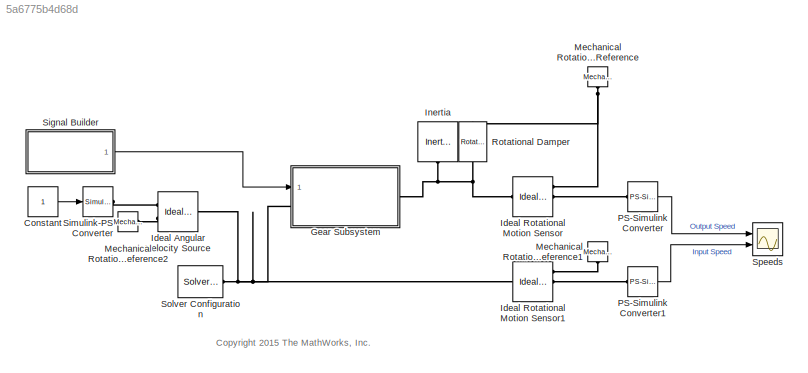
MODEL slx_5a6775b4d68d
KIND model
CONFIG AbsTol = 1e-3
CONFIG FixedStep = auto
CONFIG MaxStep = 0.2
CONFIG MinStep = auto
CONFIG RelTol = 1e-3
CONFIG SampleTimeConstraint = Unconstrained
CONFIG Solver = ode23t
CONFIG SolverMode = Auto
CONFIG SolverName = ode23t
CONFIG StartTime = 0.0
CONFIG StopTime = 30
BLOCK [Constant] Constant
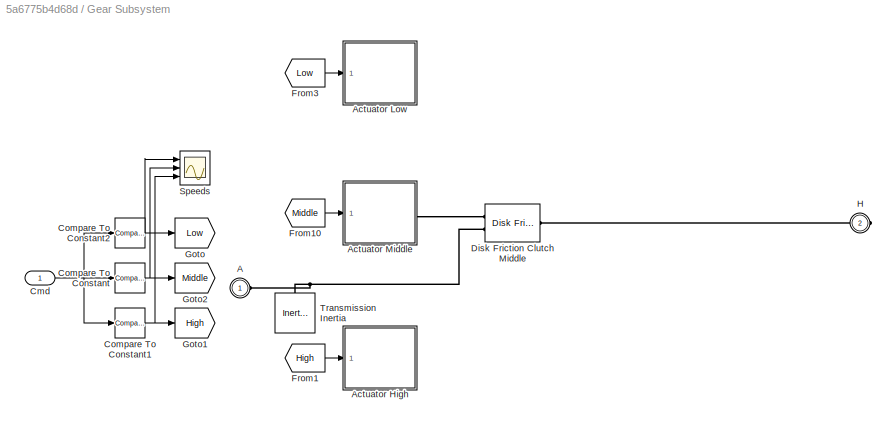
BLOCK [SubSystem] Gear Subsystem
  Ports = [1, 0, 0, 0, 0, 1, 1]
  RequestExecContextInheritance = off
BLOCK [PMIOPort] Gear Subsystem/A
  Port = 1
  Side = Left
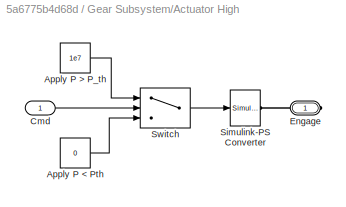
BLOCK [SubSystem] Gear Subsystem/Actuator High
  Ports = [1, 0, 0, 0, 0, 0, 1]
  RequestExecContextInheritance = off
BLOCK [Constant] Gear Subsystem/Actuator High/Apply P < Pth
  Value = 0
BLOCK [Constant] Gear Subsystem/Actuator High/Apply P > P_th
  Value = 1e7
BLOCK [Inport] Gear Subsystem/Actuator High/Cmd
  IconDisplay = Port number
BLOCK [PMIOPort] Gear Subsystem/Actuator High/Engage
  Port = 1
  Side = Right
BLOCK [Reference] Gear Subsystem/Actuator High/Simulink-PS Converter  REF=nesl_utility/Simulink-PS
Converter
  AffineConversion = off
  Frequencies = []
  InputFilterTimeConstant = 0.001
  InputFiltering = off
  LeftPortType = input
  NoiseDistribution = none
  NoiseParameters = []
  PhysicalDomain = network_engine_domain
  Ports = [1, 0, 0, 0, 0, 0, 1]
  PseudoPeriodic = off
  RightPortType = output
  SimscapeFilterOrder = 1
  SourceBlock = nesl_utility/Simulink-PS\nConverter
  SourceType = Simulink-PS\nConverter
  SubClassName = ps_input
  UdotUserProvided = 1
  Unit = 1
BLOCK [Switch] Gear Subsystem/Actuator High/Switch
  Criteria = u2 > Threshold
  InputSameDT = off
  SaturateOnIntegerOverflow = off
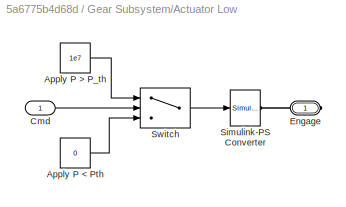
BLOCK [SubSystem] Gear Subsystem/Actuator Low
  Ports = [1, 0, 0, 0, 0, 0, 1]
  RequestExecContextInheritance = off
BLOCK [Constant] Gear Subsystem/Actuator Low/Apply P < Pth
  Value = 0
BLOCK [Constant] Gear Subsystem/Actuator Low/Apply P > P_th
  Value = 1e7
BLOCK [Inport] Gear Subsystem/Actuator Low/Cmd
  IconDisplay = Port number
BLOCK [PMIOPort] Gear Subsystem/Actuator Low/Engage
  Port = 1
  Side = Right
BLOCK [Reference] Gear Subsystem/Actuator Low/Simulink-PS Converter  REF=nesl_utility/Simulink-PS
Converter
  AffineConversion = off
  Frequencies = []
  InputFilterTimeConstant = 0.001
  InputFiltering = off
  LeftPortType = input
  NoiseDistribution = none
  NoiseParameters = []
  PhysicalDomain = network_engine_domain
  Ports = [1, 0, 0, 0, 0, 0, 1]
  PseudoPeriodic = off
  RightPortType = output
  SimscapeFilterOrder = 1
  SourceBlock = nesl_utility/Simulink-PS\nConverter
  SourceType = Simulink-PS\nConverter
  SubClassName = ps_input
  UdotUserProvided = 1
  Unit = 1
BLOCK [Switch] Gear Subsystem/Actuator Low/Switch
  Criteria = u2 > Threshold
  InputSameDT = off
  SaturateOnIntegerOverflow = off
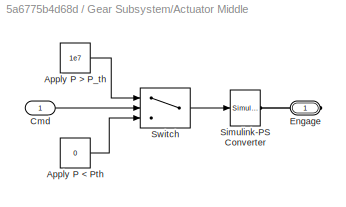
BLOCK [SubSystem] Gear Subsystem/Actuator Middle
  Ports = [1, 0, 0, 0, 0, 0, 1]
  RequestExecContextInheritance = off
BLOCK [Constant] Gear Subsystem/Actuator Middle/Apply P < Pth
  Value = 0
BLOCK [Constant] Gear Subsystem/Actuator Middle/Apply P > P_th
  Value = 1e7
BLOCK [Inport] Gear Subsystem/Actuator Middle/Cmd
  IconDisplay = Port number
BLOCK [PMIOPort] Gear Subsystem/Actuator Middle/Engage
  Port = 1
  Side = Right
BLOCK [Reference] Gear Subsystem/Actuator Middle/Simulink-PS Converter  REF=nesl_utility/Simulink-PS
Converter
  AffineConversion = off
  Frequencies = []
  InputFilterTimeConstant = 0.001
  InputFiltering = off
  LeftPortType = input
  NoiseDistribution = none
  NoiseParameters = []
  PhysicalDomain = network_engine_domain
  Ports = [1, 0, 0, 0, 0, 0, 1]
  PseudoPeriodic = off
  RightPortType = output
  SimscapeFilterOrder = 1
  SourceBlock = nesl_utility/Simulink-PS\nConverter
  SourceType = Simulink-PS\nConverter
  SubClassName = ps_input
  UdotUserProvided = 1
  Unit = 1
BLOCK [Switch] Gear Subsystem/Actuator Middle/Switch
  Criteria = u2 > Threshold
  InputSameDT = off
  SaturateOnIntegerOverflow = off
BLOCK [Inport] Gear Subsystem/Cmd
  IconDisplay = Port number
BLOCK [Reference] Gear Subsystem/Compare To Constant  REF=simulink/Logic and Bit
Operations/Compare
To Constant
  OutDataTypeStr = boolean
  Ports = [1, 1]
  SourceBlock = simulink/Logic and Bit\nOperations/Compare\nTo Constant
  SourceType = Compare To Constant
  ZeroCross = on
  const = 2
  relop = ==
BLOCK [Reference] Gear Subsystem/Compare To Constant1  REF=simulink/Logic and Bit
Operations/Compare
To Constant
  OutDataTypeStr = boolean
  Ports = [1, 1]
  SourceBlock = simulink/Logic and Bit\nOperations/Compare\nTo Constant
  SourceType = Compare To Constant
  ZeroCross = on
  const = 3
  relop = ==
BLOCK [Reference] Gear Subsystem/Compare To Constant2  REF=simulink/Logic and Bit
Operations/Compare
To Constant
  OutDataTypeStr = boolean
  Ports = [1, 1]
  SourceBlock = simulink/Logic and Bit\nOperations/Compare\nTo Constant
  SourceType = Compare To Constant
  ZeroCross = on
  const = 1
  relop = ==
BLOCK [Reference] Gear Subsystem/Disk Friction Clutch Middle  REF=sdl_lib/Clutches/Disk Friction Clutch
  ClassName = disk_friction_clutch
  ComponentPath = sdl.clutches.disk_friction_clutch
  ComponentVariantNames = disk_friction_clutch
  ComponentVariants = sdl.clutches.disk_friction_clutch
  LogSimulationData = off
  Ports = [0, 0, 0, 0, 0, 2, 1]
  SchemaVersion = 1
  SourceBlock = sdl_lib/Clutches/Disk Friction Clutch
  SourceFile = sdl.clutches.disk_friction_clutch
  SourceType = Disk Friction Clutch
  d_f = 1
  d_f_unit = 1
  d_i = 100
  d_i_unit = mm
  d_o = 150
  d_o_unit = mm
  friction_model = 1
  friction_model_unit = 1
  geometry_model = 1
  geometry_model_unit = 1
  initial_state_locked = 0
  initial_state_locked_unit = 1
  mu_coulomb = 0.3
  mu_coulomb_unit = 1
  mu_coulomb_vector = [ 0.29 0.28 0.26 0.22 0.21 0.2 0.2 0.19 0.19 0.19 0.19 0.19 ]
  mu_coulomb_vector_unit = 1
  mu_extrap_method = 1
  mu_extrap_method_unit = 1
  mu_interp_method = 1
  mu_interp_method_unit = 1
  mu_static = 0.35
  mu_static_unit = 1
  mu_visc = 0
  mu_visc_unit = N*m/(rad/s)
  mu_w_vector = [ 0 0.1 0.2 0.3 0.4 0.5 1 2 5 10 100 1000 ]
  mu_w_vector_unit = rad/s
  nS = 4
  nS_unit = 1
  piston_area = 0.001
  piston_area_unit = m^2
  pressure_min = 100
  pressure_min_unit = Pa
  r_eff = 130
  r_eff_unit = mm
  unidirectional = 0
  unidirectional_unit = 1
  w_tol = 0.001
  w_tol_unit = rad/s
BLOCK [From] Gear Subsystem/From1
  GotoTag = High
BLOCK [From] Gear Subsystem/From10
  GotoTag = Middle
BLOCK [From] Gear Subsystem/From3
  GotoTag = Low
BLOCK [Goto] Gear Subsystem/Goto
  GotoTag = Low
BLOCK [Goto] Gear Subsystem/Goto1
  GotoTag = High
BLOCK [Goto] Gear Subsystem/Goto2
  GotoTag = Middle
BLOCK [PMIOPort] Gear Subsystem/H
  Port = 2
  Side = Right
BLOCK [Scope] Gear Subsystem/Speeds
  DataFormat = StructureWithTime
  Floating = off
  LimitDataPoints = off
  NumInputPorts = 3
  Ports = [3]
  SampleTime = 0
  SaveName = ScopeData1
  YMax = 1.7~2~5
  YMin = -0.2~0~-5
  ZoomMode = xonly
BLOCK [Reference] Gear Subsystem/Transmission Inertia  REF=fl_lib/Mechanical/Rotational Elements/Inertia
  ClassName = inertia
  ComponentPath = foundation.mechanical.rotational.inertia
  ComponentVariantNames = inertia
  ComponentVariants = foundation.mechanical.rotational.inertia
  LogSimulationData = off
  Ports = [0, 0, 0, 0, 0, 1]
  SchemaVersion = 1
  SourceBlock = fl_lib/Mechanical/Rotational Elements/Inertia
  SourceFile = foundation.mechanical.rotational.inertia
  SourceType = Inertia
  inertia = 0.0005
  inertia_unit = kg*m^2
  t = 0
  t_priority = High
  t_specify = off
  t_unit = N*m
  w = 0
  w_priority = High
  w_specify = off
  w_unit = rad/s
BLOCK [Reference] Ideal Angular Velocity Source  REF=fl_lib/Mechanical/Mechanical Sources/Ideal Angular
Velocity Source
  ClassName = angular_velocity
  ComponentPath = foundation.mechanical.sources.angular_velocity
  ComponentVariantNames = angular_velocity
  ComponentVariants = foundation.mechanical.sources.angular_velocity
  LogSimulationData = off
  Ports = [0, 0, 0, 0, 0, 1, 2]
  SchemaVersion = 1
  SourceBlock = fl_lib/Mechanical/Mechanical Sources/Ideal Angular\nVelocity Source
  SourceFile = foundation.mechanical.sources.angular_velocity
  SourceType = Ideal Angular\nVelocity Source
BLOCK [Reference] Ideal Rotational Motion Sensor  REF=fl_lib/Mechanical/Mechanical Sensors/Ideal Rotational
Motion Sensor
  ClassName = angular_velocity
  ComponentPath = foundation.mechanical.sensors.angular_velocity
  ComponentVariantNames = angular_velocity
  ComponentVariants = foundation.mechanical.sensors.angular_velocity
  LogSimulationData = off
  Ports = [0, 0, 0, 0, 0, 1, 3]
  SchemaVersion = 1
  SourceBlock = fl_lib/Mechanical/Mechanical Sensors/Ideal Rotational\nMotion Sensor
  SourceFile = foundation.mechanical.sensors.angular_velocity
  SourceType = Ideal Rotational\nMotion Sensor
  offset = 0
  offset_unit = rad
BLOCK [Reference] Ideal Rotational Motion Sensor1  REF=fl_lib/Mechanical/Mechanical Sensors/Ideal Rotational
Motion Sensor
  ClassName = angular_velocity
  ComponentPath = foundation.mechanical.sensors.angular_velocity
  ComponentVariantNames = angular_velocity
  ComponentVariants = foundation.mechanical.sensors.angular_velocity
  LogSimulationData = off
  Ports = [0, 0, 0, 0, 0, 1, 3]
  SchemaVersion = 1
  SourceBlock = fl_lib/Mechanical/Mechanical Sensors/Ideal Rotational\nMotion Sensor
  SourceFile = foundation.mechanical.sensors.angular_velocity
  SourceType = Ideal Rotational\nMotion Sensor
  offset = 0
  offset_unit = rad
BLOCK [Reference] Inertia  REF=fl_lib/Mechanical/Rotational Elements/Inertia
  ClassName = inertia
  ComponentPath = foundation.mechanical.rotational.inertia
  ComponentVariantNames = inertia
  ComponentVariants = foundation.mechanical.rotational.inertia
  LogSimulationData = off
  Ports = [0, 0, 0, 0, 0, 1]
  SchemaVersion = 1
  SourceBlock = fl_lib/Mechanical/Rotational Elements/Inertia
  SourceFile = foundation.mechanical.rotational.inertia
  SourceType = Inertia
  inertia = 0.0001
  inertia_unit = kg*m^2
  t = 0
  t_priority = High
  t_specify = off
  t_unit = N*m
  w = 0
  w_priority = High
  w_specify = on
  w_unit = rad/s
BLOCK [Reference] Mechanical Rotational Reference  REF=fl_lib/Mechanical/Rotational Elements/Mechanical
Rotational Reference
  ClassName = reference
  ComponentPath = foundation.mechanical.rotational.reference
  ComponentVariantNames = reference
  ComponentVariants = foundation.mechanical.rotational.reference
  LogSimulationData = off
  Ports = [0, 0, 0, 0, 0, 1]
  SchemaVersion = 1
  SourceBlock = fl_lib/Mechanical/Rotational Elements/Mechanical\nRotational Reference
  SourceFile = foundation.mechanical.rotational.reference
  SourceType = Mechanical\nRotational Reference
BLOCK [Reference] Mechanical Rotational Reference1  REF=fl_lib/Mechanical/Rotational Elements/Mechanical
Rotational Reference
  ClassName = reference
  ComponentPath = foundation.mechanical.rotational.reference
  ComponentVariantNames = reference
  ComponentVariants = foundation.mechanical.rotational.reference
  LogSimulationData = off
  Ports = [0, 0, 0, 0, 0, 1]
  SchemaVersion = 1
  SourceBlock = fl_lib/Mechanical/Rotational Elements/Mechanical\nRotational Reference
  SourceFile = foundation.mechanical.rotational.reference
  SourceType = Mechanical\nRotational Reference
BLOCK [Reference] Mechanical Rotational Reference2  REF=fl_lib/Mechanical/Rotational Elements/Mechanical
Rotational Reference
  ClassName = reference
  ComponentPath = foundation.mechanical.rotational.reference
  ComponentVariantNames = reference
  ComponentVariants = foundation.mechanical.rotational.reference
  LogSimulationData = off
  Ports = [0, 0, 0, 0, 0, 1]
  SchemaVersion = 1
  SourceBlock = fl_lib/Mechanical/Rotational Elements/Mechanical\nRotational Reference
  SourceFile = foundation.mechanical.rotational.reference
  SourceType = Mechanical\nRotational Reference
BLOCK [Reference] PS-Simulink Converter  REF=nesl_utility/PS-Simulink
Converter
  AffineConversion = off
  Frequencies = []
  LeftPortType = input
  PhysicalDomain = network_engine_domain
  Ports = [0, 1, 0, 0, 0, 1]
  PseudoPeriodic = off
  RightPortType = output
  SourceBlock = nesl_utility/PS-Simulink\nConverter
  SourceType = PS-Simulink\nConverter
  SubClassName = ps_output
  Unit = rpm
BLOCK [Reference] PS-Simulink Converter1  REF=nesl_utility/PS-Simulink
Converter
  AffineConversion = off
  Frequencies = []
  LeftPortType = input
  PhysicalDomain = network_engine_domain
  Ports = [0, 1, 0, 0, 0, 1]
  PseudoPeriodic = off
  RightPortType = output
  SourceBlock = nesl_utility/PS-Simulink\nConverter
  SourceType = PS-Simulink\nConverter
  SubClassName = ps_output
  Unit = rpm
BLOCK [Reference] Rotational Damper  REF=fl_lib/Mechanical/Rotational Elements/Rotational Damper
  ClassName = damper
  ComponentPath = foundation.mechanical.rotational.damper
  ComponentVariantNames = damper
  ComponentVariants = foundation.mechanical.rotational.damper
  D = 0.0001
  D_unit = N*m/(rad/s)
  LogSimulationData = off
  Ports = [0, 0, 0, 0, 0, 1, 1]
  SchemaVersion = 1
  SourceBlock = fl_lib/Mechanical/Rotational Elements/Rotational Damper
  SourceFile = foundation.mechanical.rotational.damper
  SourceType = Rotational Damper
  t = 0
  t_priority = High
  t_specify = off
  t_unit = N*m
  w = 0
  w_priority = High
  w_specify = off
  w_unit = rad/s
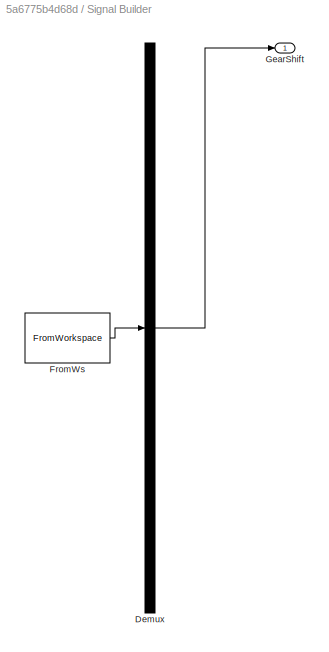
BLOCK [SubSystem] Signal Builder
  ClipboardFcn = sigbuilder_block('clipboard');
  CloseFcn = sigbuilder_block('close');
  ContinueFcn = sigbuilder_block('continue');
  CopyFcn = sigbuilder_block('copy');
  DeleteFcn = sigbuilder_block('delete');
  LoadFcn = sigbuilder_block('load');
  MaskHideContents = on
  ModelCloseFcn = sigbuilder_block('modelClose');
  NameChangeFcn = sigbuilder_block('namechange');
  OpenFcn = sigbuilder_block('open',[306 225.75 549.75 399.75 ]);
  PauseFcn = sigbuilder_block('pause');
  Ports = [0, 1]
  PreSaveFcn = sigbuilder_block('preSave');
  RequestExecContextInheritance = off
  StartFcn = sigbuilder_block('start');
  StopFcn = sigbuilder_block('stop');
  Tag = STV Subsys
BLOCK [Demux] Signal Builder/Demux
  Outputs = 1
  Ports = [1, 1]
  Tag = STV Demux
BLOCK [FromWorkspace] Signal Builder/FromWs
  SampleTime = 0
  Tag = STV FromWs
  VariableName = tuvar
  ZeroCross = on
BLOCK [Outport] Signal Builder/GearShift
  IconDisplay = Port number
  Tag = STV Outport
BLOCK [Reference] Simulink-PS Converter  REF=nesl_utility/Simulink-PS
Converter
  AffineConversion = off
  Frequencies = []
  InputFilterTimeConstant = 0.001
  InputFiltering = off
  LeftPortType = input
  NoiseDistribution = none
  NoiseParameters = []
  PhysicalDomain = network_engine_domain
  Ports = [1, 0, 0, 0, 0, 0, 1]
  PseudoPeriodic = off
  RightPortType = output
  SimscapeFilterOrder = 1
  SourceBlock = nesl_utility/Simulink-PS\nConverter
  SourceType = Simulink-PS\nConverter
  SubClassName = ps_input
  UdotUserProvided = 1
  Unit = rpm
BLOCK [Reference] Solver Configuration  REF=nesl_utility/Solver
Configuration
  AbsTol = 1e-06
  Accelerate = off
  AutomaticFiltering = on
  DelaysMemoryBudget = 1024
  DoDC = off
  DoFixedCost = off
  EnableSwitchedLinearOptims = on
  FilteringTimeConstant = 0.001
  FrequencyDomain = off
  Harmonics = []
  LeftPortType = input
  LinearAlgebra = Sparse
  LocalSolverChoice = NE_BACKWARD_EULER_ADVANCER
  LocalSolverSampleTime = 0.001
  MaxModeIter = 2
  MaxNonlinIter = 3
  MinStep = 1e-09
  NumHomotopyIterations = 100
  PhysicalDomain = network_engine_domain
  Ports = [0, 0, 0, 0, 0, 0, 1]
  Profile = off
  RelTol = 0.001
  ResidualTolerance = 1e-09
  RevertToSquareIcSolve = off
  RightPortType = generic
  SimulateNoise = off
  SourceBlock = nesl_utility/Solver\nConfiguration
  SourceType = Solver\nConfiguration
  SubClassName = solver
  ToWorkspace = off
  Tones = []
  UseCCode = off
  UseLocalSampling = off
  UseLocalSolver = off
BLOCK [Scope] Speeds
  DataFormat = StructureWithTime
  Floating = off
  LimitDataPoints = off
  NumInputPorts = 2
  Ports = [2]
  SampleTime = 0
  YMax = 1.7~1.2
  YMin = -0.2~-0.2
  ZoomMode = yonly
ANNOTATION (root): <copyright redacted>
LINE Constant:1 -> Simulink-PS Converter:1
LINE Gear Subsystem/Actuator High/Apply P < Pth:1 -> Gear Subsystem/Actuator High/Switch:3
LINE Gear Subsystem/Actuator High/Apply P > P_th:1 -> Gear Subsystem/Actuator High/Switch:1
LINE Gear Subsystem/Actuator High/Cmd:1 -> Gear Subsystem/Actuator High/Switch:2
LINE Gear Subsystem/Actuator High/Switch:1 -> Gear Subsystem/Actuator High/Simulink-PS Converter:1
LINE Gear Subsystem/Actuator Low/Apply P < Pth:1 -> Gear Subsystem/Actuator Low/Switch:3
LINE Gear Subsystem/Actuator Low/Apply P > P_th:1 -> Gear Subsystem/Actuator Low/Switch:1
LINE Gear Subsystem/Actuator Low/Cmd:1 -> Gear Subsystem/Actuator Low/Switch:2
LINE Gear Subsystem/Actuator Low/Switch:1 -> Gear Subsystem/Actuator Low/Simulink-PS Converter:1
LINE Gear Subsystem/Actuator Middle/Apply P < Pth:1 -> Gear Subsystem/Actuator Middle/Switch:3
LINE Gear Subsystem/Actuator Middle/Apply P > P_th:1 -> Gear Subsystem/Actuator Middle/Switch:1
LINE Gear Subsystem/Actuator Middle/Cmd:1 -> Gear Subsystem/Actuator Middle/Switch:2
LINE Gear Subsystem/Actuator Middle/Switch:1 -> Gear Subsystem/Actuator Middle/Simulink-PS Converter:1
NET Gear Subsystem/Cmd:1 -> Gear Subsystem/Compare To Constant1:1, Gear Subsystem/Compare To Constant2:1, Gear Subsystem/Compare To Constant:1
NET Gear Subsystem/Compare To Constant1:1 -> Gear Subsystem/Goto1:1, Gear Subsystem/Speeds:3
NET Gear Subsystem/Compare To Constant2:1 -> Gear Subsystem/Goto:1, Gear Subsystem/Speeds:1
NET Gear Subsystem/Compare To Constant:1 -> Gear Subsystem/Goto2:1, Gear Subsystem/Speeds:2
LINE Gear Subsystem/From10:1 -> Gear Subsystem/Actuator Middle:1
LINE Gear Subsystem/From1:1 -> Gear Subsystem/Actuator High:1
LINE Gear Subsystem/From3:1 -> Gear Subsystem/Actuator Low:1
LINE PS-Simulink Converter1:1 -> Speeds:2
LINE PS-Simulink Converter:1 -> Speeds:1
LINE Signal Builder:1 -> Gear Subsystem:1
PNET net1: Gear Subsystem/A:RConn1 -- Gear Subsystem/Disk Friction Clutch Middle:LConn2 -- Gear Subsystem/Transmission Inertia:LConn1
PLINE Gear Subsystem/Actuator High/Engage:RConn1 -- Gear Subsystem/Actuator High/Simulink-PS Converter:RConn1
PLINE Gear Subsystem/Actuator Low/Engage:RConn1 -- Gear Subsystem/Actuator Low/Simulink-PS Converter:RConn1
PLINE Gear Subsystem/Actuator Middle/Engage:RConn1 -- Gear Subsystem/Actuator Middle/Simulink-PS Converter:RConn1
PLINE Gear Subsystem/Actuator Middle:RConn1 -- Gear Subsystem/Disk Friction Clutch Middle:LConn1
PLINE Gear Subsystem/Disk Friction Clutch Middle:RConn1 -- Gear Subsystem/H:RConn1
PNET net2: Gear Subsystem:LConn1 -- Ideal Angular Velocity Source:LConn1 -- Ideal Rotational Motion Sensor1:LConn1 -- Solver Configuration:RConn1
PNET net3: Gear Subsystem:RConn1 -- Ideal Rotational Motion Sensor:LConn1 -- Inertia:LConn1 -- Rotational Damper:LConn1
PLINE Ideal Angular Velocity Source:RConn1 -- Simulink-PS Converter:RConn1
PLINE Ideal Angular Velocity Source:RConn2 -- Mechanical Rotational Reference2:LConn1
PLINE Ideal Rotational Motion Sensor1:RConn1 -- Mechanical Rotational Reference1:LConn1
PLINE Ideal Rotational Motion Sensor1:RConn2 -- PS-Simulink Converter1:LConn1
PNET net4: Ideal Rotational Motion Sensor:RConn1 -- Mechanical Rotational Reference:LConn1 -- Rotational Damper:RConn1
PLINE Ideal Rotational Motion Sensor:RConn2 -- PS-Simulink Converter:LConn1
note: NET lines group one-source signal fan-out (src -> all destinations, sorted); 1:1 wires keep LINE; PNET lines group multi-terminal physical nets as a canonical sorted terminal list (undirected conserving connections); 2-terminal nets keep the pairwise PLINE form
